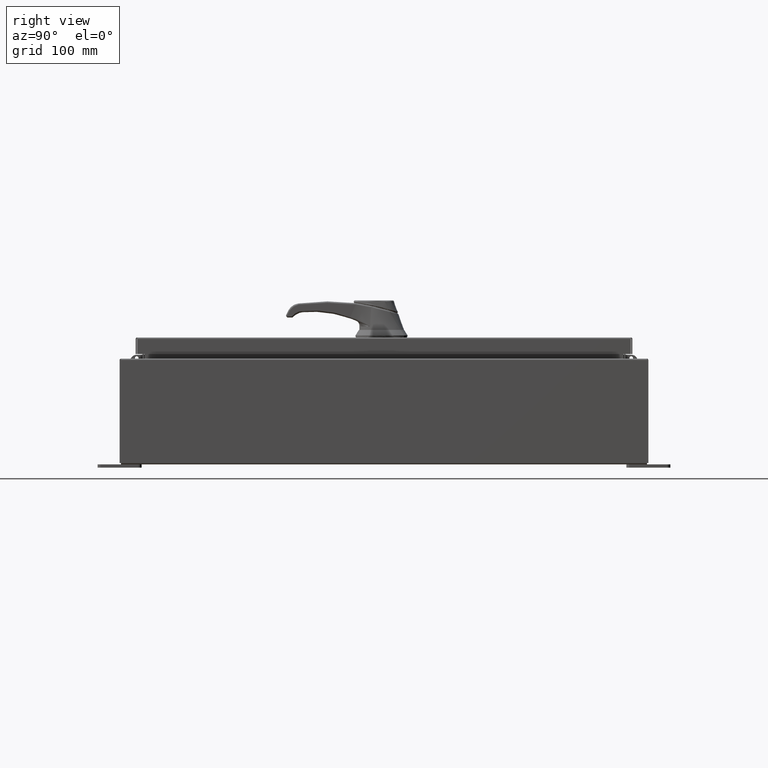
[diagram: clean part render]
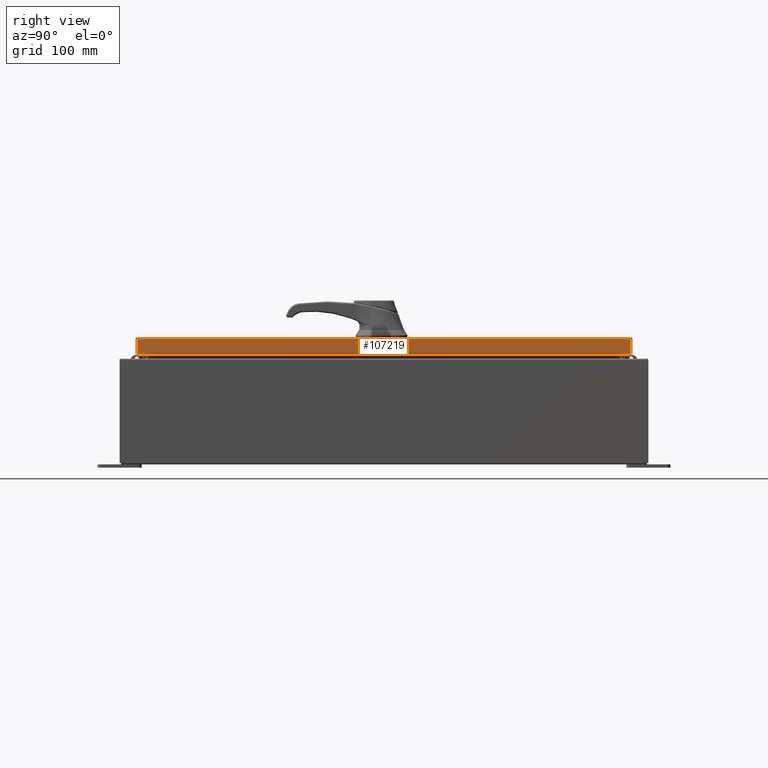
[diagram: same view with one face highlighted and labeled with its STEP entity id]
A machine part, right view. The second image highlights one B-rep face of the part: STEP entity #107219.
In plain terms, the highlighted planar face has unit normal (1, 0, 0).
Its self-contained STEP definition (entity closure, byte-faithful):
#222 = ORIENTED_EDGE ( 'NONE', *, *, #28451, .T. ) ;
#663 = CARTESIAN_POINT ( 'NONE',  ( 11.07800000000000300, -14.09399999999999900, -0.9376999999999997600 ) ) ;
#8731 = CARTESIAN_POINT ( 'NONE',  ( 11.07800000000000300, -14.00515786437626200, -0.9376999999999997600 ) ) ;
#9621 = EDGE_CURVE ( 'NONE', #39946, #106854, #105148, .T. ) ;
#9776 = VECTOR ( 'NONE', #20367, 39.37007874015748100 ) ;
#14125 = VECTOR ( 'NONE', #106972, 39.37007874015748100 ) ;
#20367 = DIRECTION ( 'NONE',  ( -2.532419924601866100E-015, -6.982962677686265900E-015, 1.000000000000000000 ) ) ;
#21850 = EDGE_CURVE ( 'NONE', #91820, #33664, #85982, .T. ) ;
#24806 = DIRECTION ( 'NONE',  ( 0.0000000000000000000, -1.000000000000000000, 0.0000000000000000000 ) ) ;
#28451 = EDGE_CURVE ( 'NONE', #91820, #39946, #58340, .T. ) ;
#30833 = VECTOR ( 'NONE', #24806, 39.37007874015748100 ) ;
#33664 = VERTEX_POINT ( 'NONE', #8731 ) ;
#39946 = VERTEX_POINT ( 'NONE', #104220 ) ;
#41550 = PLANE ( 'NONE',  #63774 ) ;
#42857 = CARTESIAN_POINT ( 'NONE',  ( 11.07799999999999900, -14.00515786437626900, -0.07469999999999980800 ) ) ;
#43841 = ORIENTED_EDGE ( 'NONE', *, *, #9621, .T. ) ;
#45323 = FACE_OUTER_BOUND ( 'NONE', #106812, .T. ) ;
#47609 = CARTESIAN_POINT ( 'NONE',  ( 11.07799999999999900, -14.00515786437626900, -0.08770000000000008300 ) ) ;
#55377 = DIRECTION ( 'NONE',  ( 0.0000000000000000000, -1.000000000000000000, 0.0000000000000000000 ) ) ;
#58340 = LINE ( 'NONE', #65938, #9776 ) ;
#58554 = EDGE_CURVE ( 'NONE', #33664, #106854, #81456, .T. ) ;
#59867 = DIRECTION ( 'NONE',  ( 2.532419924601866100E-015, 0.0000000000000000000, -1.000000000000000000 ) ) ;
#63774 = AXIS2_PLACEMENT_3D ( 'NONE', #105636, #114782, #59867 ) ;
#65938 = CARTESIAN_POINT ( 'NONE',  ( 11.07799999999999900, 14.00515786437626900, 1.261124562427948200E-013 ) ) ;
#67227 = VECTOR ( 'NONE', #55377, 39.37007874015748100 ) ;
#71890 = CARTESIAN_POINT ( 'NONE',  ( 11.07800000000000300, 14.00515786437627200, -0.9376999999999997600 ) ) ;
#81456 = LINE ( 'NONE', #42857, #14125 ) ;
#85982 = LINE ( 'NONE', #663, #67227 ) ;
#91820 = VERTEX_POINT ( 'NONE', #71890 ) ;
#94324 = ORIENTED_EDGE ( 'NONE', *, *, #58554, .F. ) ;
#98557 = CARTESIAN_POINT ( 'NONE',  ( 11.07799999999999900, 0.0000000000000000000, -0.08770000000000008300 ) ) ;
#104220 = CARTESIAN_POINT ( 'NONE',  ( 11.07799999999999900, 14.00515786437626500, -0.08770000000000008300 ) ) ;
#105148 = LINE ( 'NONE', #98557, #30833 ) ;
#105636 = CARTESIAN_POINT ( 'NONE',  ( 11.07799999999999900, 0.0000000000000000000, 2.831496158075105700E-014 ) ) ;
#106812 = EDGE_LOOP ( 'NONE', ( #94324, #112409, #222, #43841 ) ) ;
#106854 = VERTEX_POINT ( 'NONE', #47609 ) ;
#106972 = DIRECTION ( 'NONE',  ( -2.532419924601866100E-015, -6.982962677686265900E-015, 1.000000000000000000 ) ) ;
#107219 = ADVANCED_FACE ( 'NONE', ( #45323 ), #41550, .T. ) ;
#112409 = ORIENTED_EDGE ( 'NONE', *, *, #21850, .F. ) ;
#114782 = DIRECTION ( 'NONE',  ( 1.000000000000000000, 0.0000000000000000000, 2.532419924601866100E-015 ) ) ;